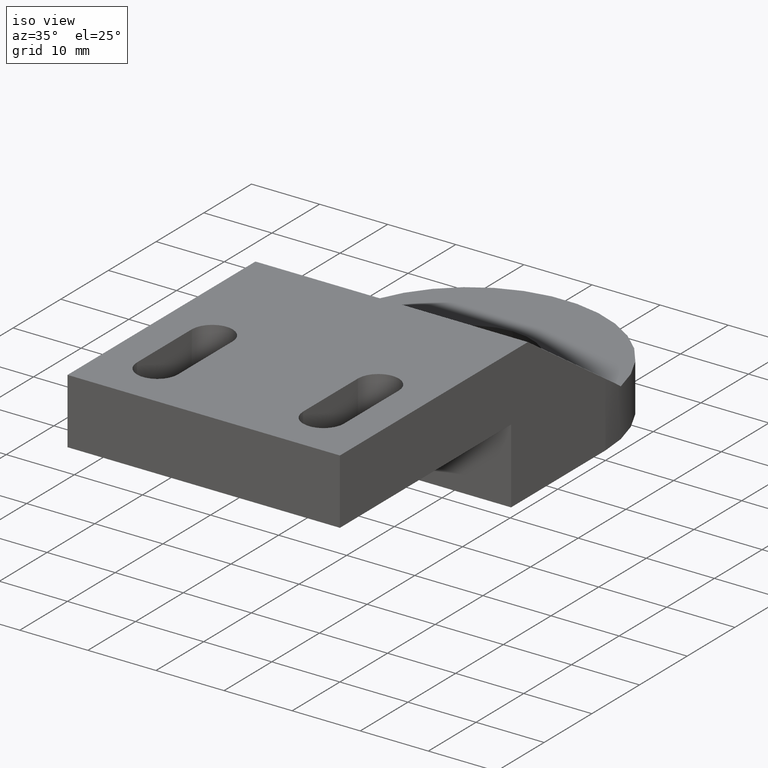
[diagram: clean part render]
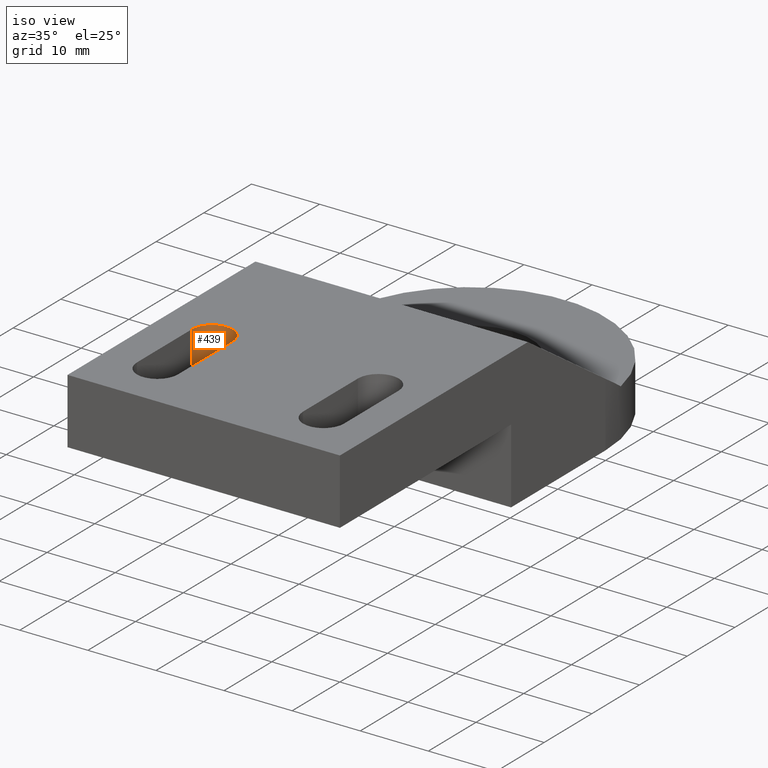
[diagram: same view with one face highlighted and labeled with its STEP entity id]
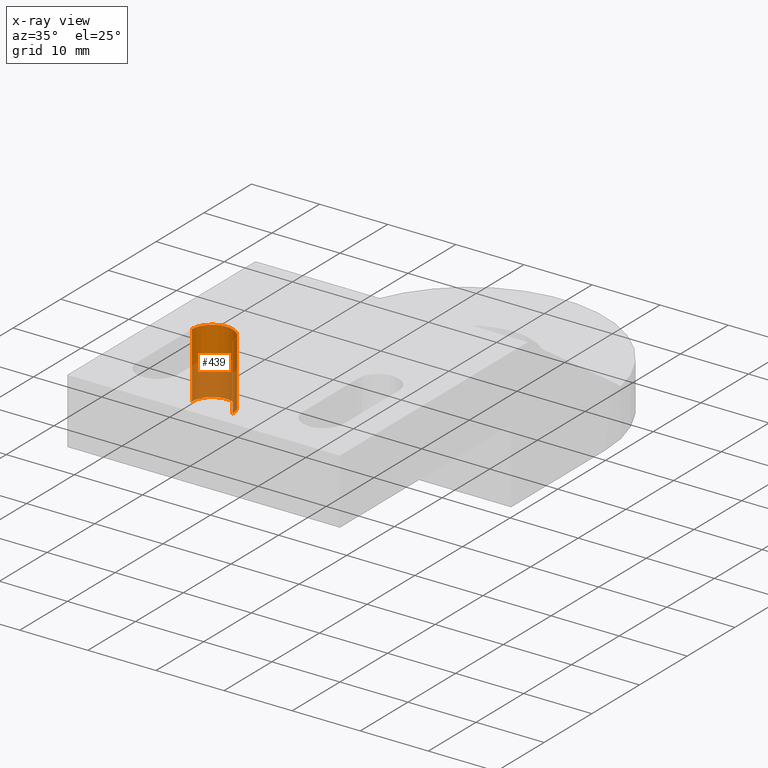
[diagram: x-ray of the same camera — body ghosted, the highlighted face saturated]
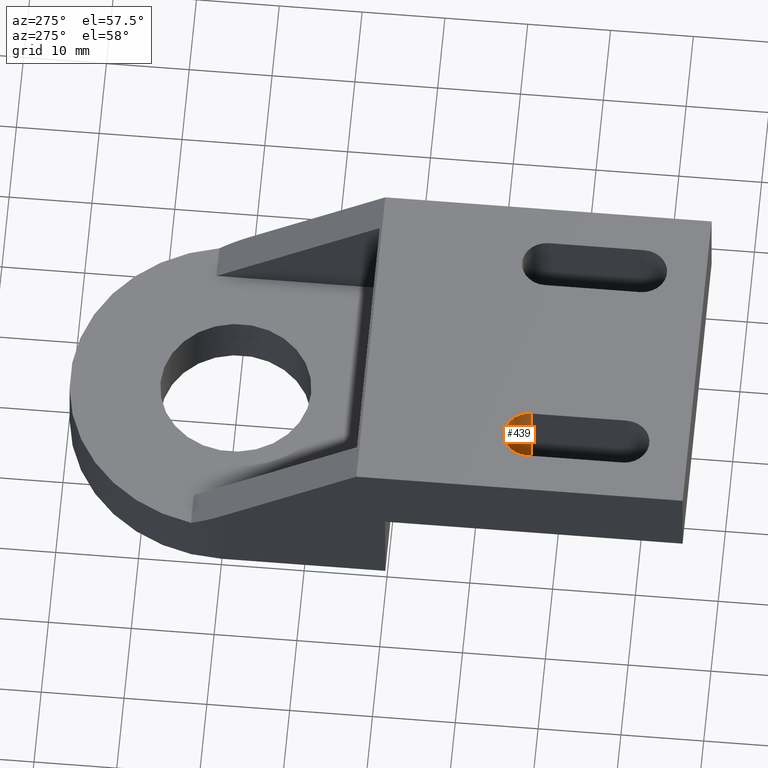
[diagram: same view with one face highlighted and labeled with its STEP entity id]
A machine part, iso view. The second image highlights one B-rep face of the part: STEP entity #439.
The next image is the same camera in x-ray: the body ghosted, the highlighted face saturated — about 54% of this face is hidden behind the body in this view.
A second angle (auxiliary view) of the same face is appended — the face is thin or edge-on in the first view.
In plain terms, the highlighted cylindrical surface (edge-blend (fillet) strip) has radius 3 mm, axis along (0, 0, 1).
Its self-contained STEP definition (entity closure, byte-faithful):
#28=CIRCLE('',#473,2.99999999998818);
#33=CIRCLE('',#481,2.99999999998818);
#40=CYLINDRICAL_SURFACE('',#495,2.99999999998818);
#61=FACE_OUTER_BOUND('',#89,.T.);
#89=EDGE_LOOP('',(#395,#396,#397,#398));
#135=LINE('',#736,#181);
#136=LINE('',#738,#182);
#181=VECTOR('',#611,9.59999999996126);
#182=VECTOR('',#614,9.59999999996126);
#205=VERTEX_POINT('',#671);
#206=VERTEX_POINT('',#673);
#214=VERTEX_POINT('',#694);
#215=VERTEX_POINT('',#696);
#250=EDGE_CURVE('',#206,#205,#28,.T.);
#261=EDGE_CURVE('',#214,#215,#33,.T.);
#281=EDGE_CURVE('',#206,#214,#135,.T.);
#282=EDGE_CURVE('',#205,#215,#136,.T.);
#395=ORIENTED_EDGE('',*,*,#250,.T.);
#396=ORIENTED_EDGE('',*,*,#282,.T.);
#397=ORIENTED_EDGE('',*,*,#261,.F.);
#398=ORIENTED_EDGE('',*,*,#281,.F.);
#439=ADVANCED_FACE('',(#61),#40,.F.);
#473=AXIS2_PLACEMENT_3D('',#674,#543,#544);
#481=AXIS2_PLACEMENT_3D('',#697,#565,#566);
#495=AXIS2_PLACEMENT_3D('',#737,#612,#613);
#543=DIRECTION('center_axis',(0.,0.,1.));
#544=DIRECTION('ref_axis',(1.,0.,0.));
#565=DIRECTION('center_axis',(0.,0.,1.));
#566=DIRECTION('ref_axis',(1.,0.,0.));
#611=DIRECTION('',(0.,0.,-1.));
#612=DIRECTION('center_axis',(0.,0.,1.));
#613=DIRECTION('ref_axis',(1.,0.,0.));
#614=DIRECTION('',(0.,0.,-1.));
#671=CARTESIAN_POINT('',(-15.1999999999389,-36.4999999998254,20.5999999999172));
#673=CARTESIAN_POINT('',(-9.19999999996253,-36.4999999998254,20.5999999999172));
#674=CARTESIAN_POINT('Origin',(-12.1999999999507,-36.4999999998254,20.5999999999172));
#694=CARTESIAN_POINT('',(-9.19999999996253,-36.4999999998254,10.999999999956));
#696=CARTESIAN_POINT('',(-15.1999999999389,-36.4999999998254,10.999999999956));
#697=CARTESIAN_POINT('Origin',(-12.1999999999507,-36.4999999998254,10.999999999956));
#736=CARTESIAN_POINT('',(-9.19999999996253,-36.4999999998254,20.5999999999172));
#737=CARTESIAN_POINT('Origin',(-12.1999999999507,-36.4999999998254,20.5999999999172));
#738=CARTESIAN_POINT('',(-15.1999999999389,-36.4999999998254,20.5999999999172));